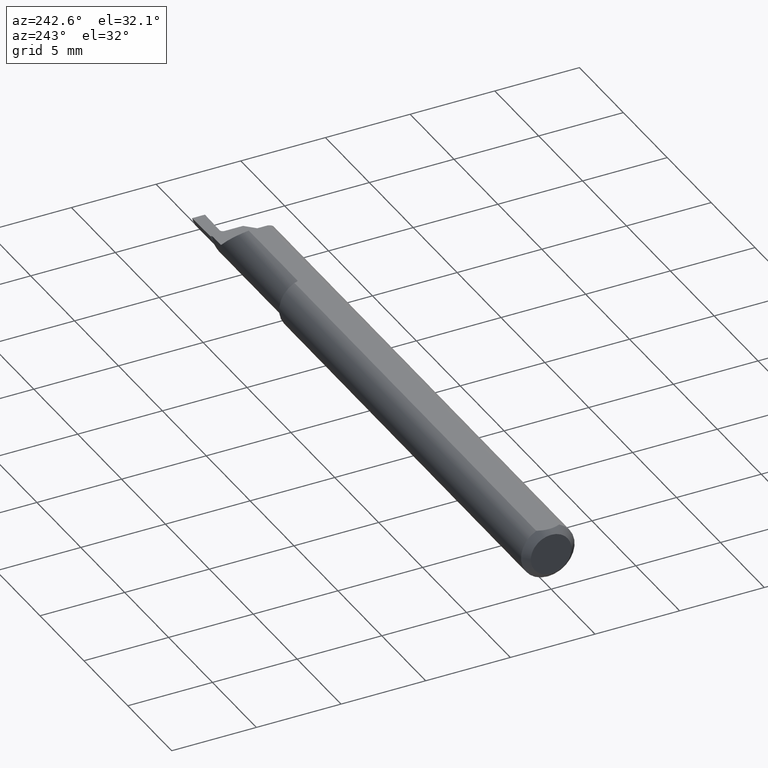
[diagram: clean part render]
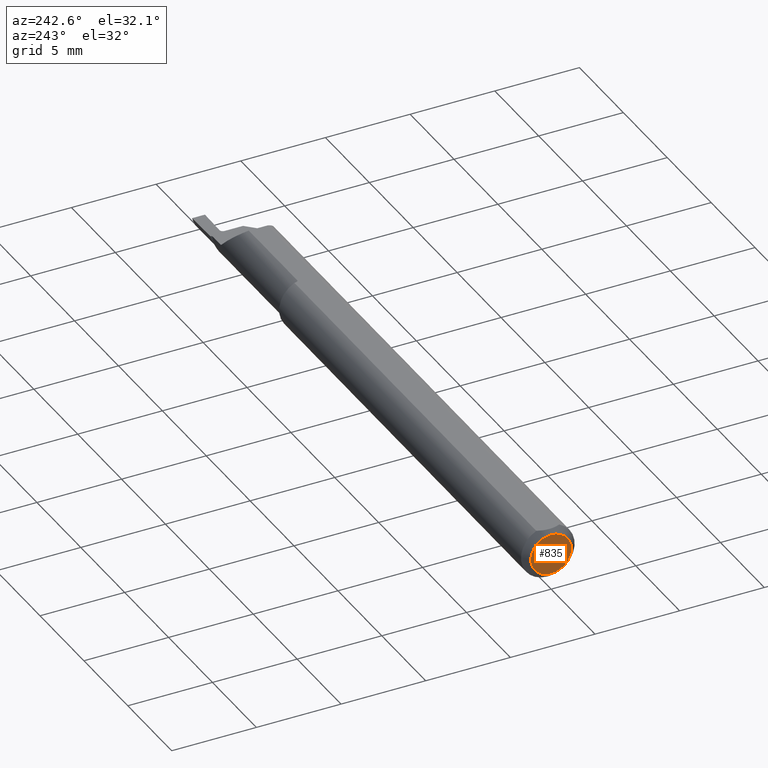
[diagram: same view with one face highlighted and labeled with its STEP entity id]
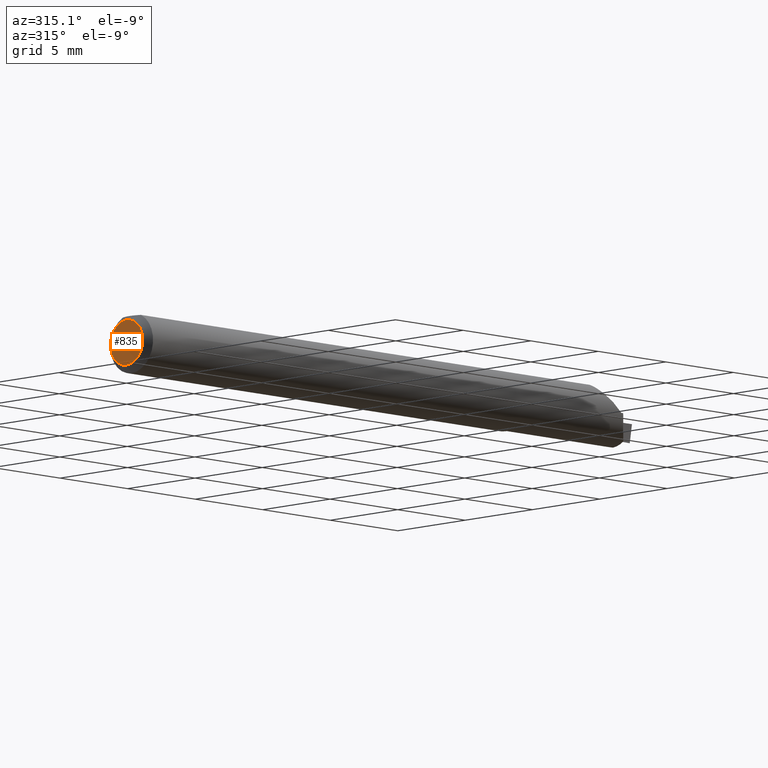
[diagram: same view with one face highlighted and labeled with its STEP entity id]
A machine part, auxiliary view. The second image highlights one B-rep face of the part: STEP entity #835.
A second angle (auxiliary view) of the same face is appended — the face is thin or edge-on in the first view.
In plain terms, the highlighted planar face has unit normal (1, 0, 0).
Its self-contained STEP definition (entity closure, byte-faithful):
#22 = CARTESIAN_POINT ( 'NONE',  ( 0.000000000000000000, 0.000000000000000000, -0.04734999999999997544 ) ) ;
#84 = EDGE_LOOP ( 'NONE', ( #240, #479 ) ) ;
#86 = FACE_OUTER_BOUND ( 'NONE', #84, .T. ) ;
#87 = EDGE_CURVE ( 'NONE', #701, #226, #507, .T. ) ;
#111 = PLANE ( 'NONE',  #521 ) ;
#120 = AXIS2_PLACEMENT_3D ( 'NONE', #795, #201, #477 ) ;
#137 = DIRECTION ( 'NONE',  ( 0.000000000000000000, 0.000000000000000000, -1.000000000000000000 ) ) ;
#201 = DIRECTION ( 'NONE',  ( -1.000000000000000000, -0.000000000000000000, -0.000000000000000000 ) ) ;
#226 = VERTEX_POINT ( 'NONE', #827 ) ;
#240 = ORIENTED_EDGE ( 'NONE', *, *, #87, .T. ) ;
#348 = DIRECTION ( 'NONE',  ( -1.000000000000000000, -0.000000000000000000, -0.000000000000000000 ) ) ;
#362 = CARTESIAN_POINT ( 'NONE',  ( 0.000000000000000000, 0.000000000000000000, 0.000000000000000000 ) ) ;
#387 = DIRECTION ( 'NONE',  ( 0.000000000000000000, 0.000000000000000000, -1.000000000000000000 ) ) ;
#477 = DIRECTION ( 'NONE',  ( 0.000000000000000000, 0.000000000000000000, -1.000000000000000000 ) ) ;
#479 = ORIENTED_EDGE ( 'NONE', *, *, #715, .T. ) ;
#507 = CIRCLE ( 'NONE', #529, 0.04734999999999997544 ) ;
#521 = AXIS2_PLACEMENT_3D ( 'NONE', #362, #630, #387 ) ;
#529 = AXIS2_PLACEMENT_3D ( 'NONE', #603, #348, #137 ) ;
#587 = CIRCLE ( 'NONE', #120, 0.04734999999999997544 ) ;
#603 = CARTESIAN_POINT ( 'NONE',  ( 0.000000000000000000, 0.000000000000000000, 0.000000000000000000 ) ) ;
#630 = DIRECTION ( 'NONE',  ( 1.000000000000000000, 0.000000000000000000, 0.000000000000000000 ) ) ;
#701 = VERTEX_POINT ( 'NONE', #22 ) ;
#715 = EDGE_CURVE ( 'NONE', #226, #701, #587, .T. ) ;
#795 = CARTESIAN_POINT ( 'NONE',  ( 0.000000000000000000, 0.000000000000000000, 0.000000000000000000 ) ) ;
#827 = CARTESIAN_POINT ( 'NONE',  ( 0.000000000000000000, 6.717187693323232259E-18, 0.04734999999999997544 ) ) ;
#835 = ADVANCED_FACE ( 'NONE', ( #86 ), #111, .F. ) ;